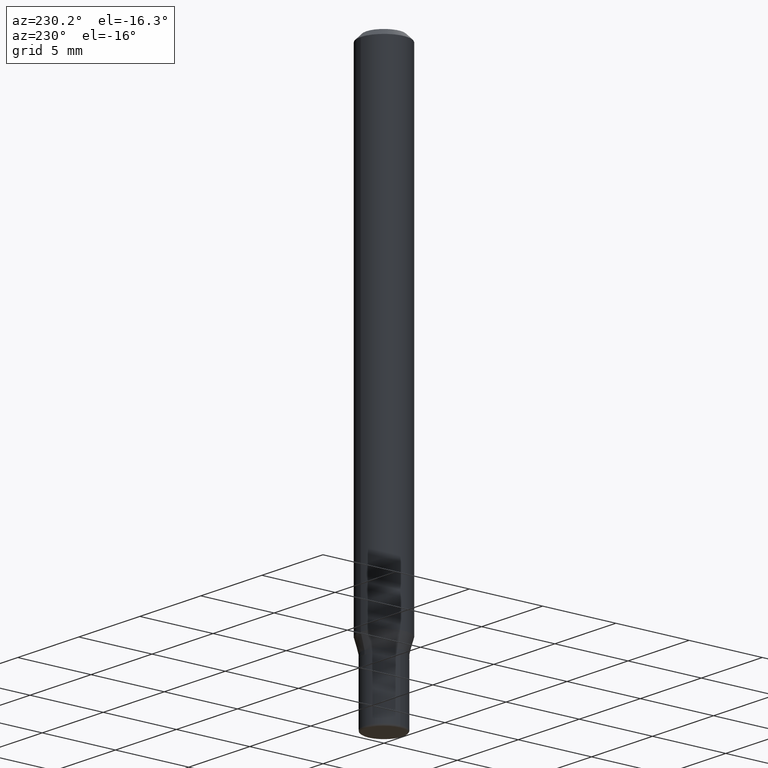
[diagram: clean part render]
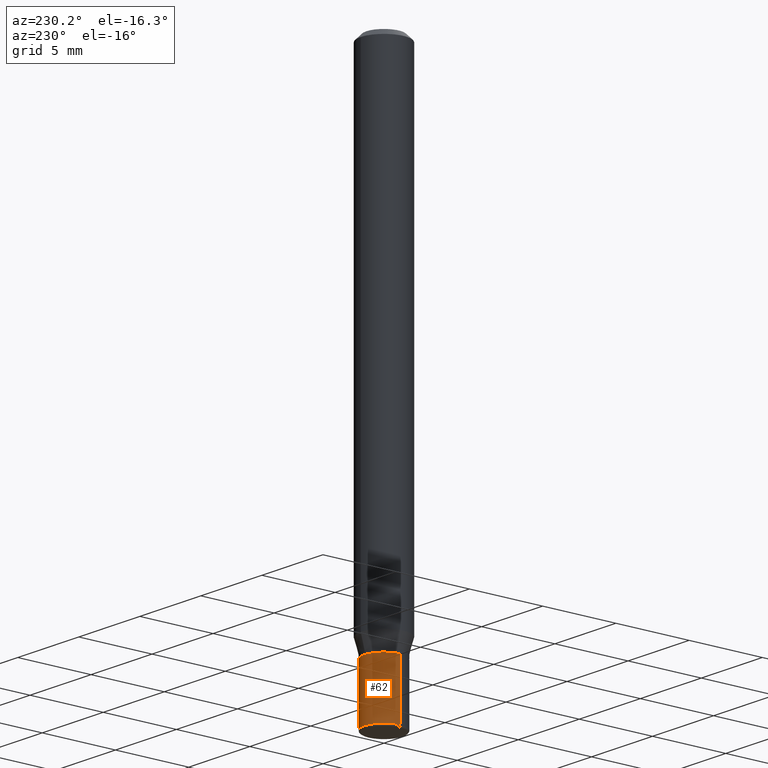
[diagram: same view with one face highlighted and labeled with its STEP entity id]
A machine part, auxiliary view. The second image highlights one B-rep face of the part: STEP entity #62.
In plain terms, the highlighted cylindrical surface (edge-blend (fillet) strip) has radius 1.3335 mm, axis along (-0, 0, 1).
Its self-contained STEP definition (entity closure, byte-faithful):
#12 = CIRCLE ( 'NONE', #185, 0.05250000000000017153 ) ;
#21 = EDGE_CURVE ( 'NONE', #258, #368, #114, .T. ) ;
#23 = CARTESIAN_POINT ( 'NONE',  ( -0.05249999999999999806, -4.579631342874949516E-15, -1.342000000000000082 ) ) ;
#24 = VERTEX_POINT ( 'NONE', #36 ) ;
#33 = DIRECTION ( 'NONE',  ( -2.445468806185136597E-29, 3.491481338843145583E-15, 1.000000000000000000 ) ) ;
#36 = CARTESIAN_POINT ( 'NONE',  ( 0.05250000000000017153, -5.586370142149033090E-15, -1.495000000000000107 ) ) ;
#62 = ADVANCED_FACE ( 'NONE', ( #352 ), #265, .T. ) ;
#73 = DIRECTION ( 'NONE',  ( -2.445468806185136597E-29, 3.491481338843145583E-15, 1.000000000000000000 ) ) ;
#80 = CARTESIAN_POINT ( 'NONE',  ( -0.05250000000000017153, -4.579631342874947939E-15, -1.495000000000000107 ) ) ;
#114 = CIRCLE ( 'NONE', #206, 0.05249999999999999806 ) ;
#116 = DIRECTION ( 'NONE',  ( 1.000000000000000000, -6.982962677686263555E-15, 0.000000000000000000 ) ) ;
#123 = ORIENTED_EDGE ( 'NONE', *, *, #456, .F. ) ;
#131 = DIRECTION ( 'NONE',  ( 1.000000000000000000, -6.982962677686268288E-15, 0.000000000000000000 ) ) ;
#147 = EDGE_CURVE ( 'NONE', #24, #454, #12, .T. ) ;
#152 = DIRECTION ( 'NONE',  ( -2.445468806185136877E-29, 3.491481338843145188E-15, 1.000000000000000000 ) ) ;
#158 = CARTESIAN_POINT ( 'NONE',  ( 0.000000000000000000, 0.000000000000000000, 0.000000000000000000 ) ) ;
#169 = CARTESIAN_POINT ( 'NONE',  ( 3.281819137900453057E-29, -4.685567956727500961E-15, -1.342000000000000082 ) ) ;
#170 = DIRECTION ( 'NONE',  ( -2.445468806185136877E-29, 3.491481338843145188E-15, 1.000000000000000000 ) ) ;
#174 = EDGE_LOOP ( 'NONE', ( #475, #443, #500, #123 ) ) ;
#178 = LINE ( 'NONE', #259, #236 ) ;
#185 = AXIS2_PLACEMENT_3D ( 'NONE', #481, #73, #116 ) ;
#206 = AXIS2_PLACEMENT_3D ( 'NONE', #169, #501, #131 ) ;
#236 = VECTOR ( 'NONE', #170, 39.37007874015748143 ) ;
#237 = CARTESIAN_POINT ( 'NONE',  ( 0.05250000000000008826, -3.666055405785296038E-16, 2.559992807292870916E-30 ) ) ;
#258 = VERTEX_POINT ( 'NONE', #471 ) ;
#259 = CARTESIAN_POINT ( 'NONE',  ( -0.05250000000000008826, 3.730349362740532247E-16, -2.582440922383829865E-30 ) ) ;
#265 = CYLINDRICAL_SURFACE ( 'NONE', #495, 0.05250000000000008826 ) ;
#298 = VECTOR ( 'NONE', #152, 39.37007874015748143 ) ;
#309 = LINE ( 'NONE', #237, #298 ) ;
#348 = DIRECTION ( 'NONE',  ( 1.000000000000000000, -6.982962677686266711E-15, 4.876176775795936353E-29 ) ) ;
#352 = FACE_OUTER_BOUND ( 'NONE', #174, .T. ) ;
#368 = VERTEX_POINT ( 'NONE', #23 ) ;
#374 = EDGE_CURVE ( 'NONE', #454, #368, #178, .T. ) ;
#443 = ORIENTED_EDGE ( 'NONE', *, *, #374, .T. ) ;
#454 = VERTEX_POINT ( 'NONE', #80 ) ;
#456 = EDGE_CURVE ( 'NONE', #24, #258, #309, .T. ) ;
#471 = CARTESIAN_POINT ( 'NONE',  ( 0.05249999999999999806, -5.052173497306030121E-15, -1.342000000000000082 ) ) ;
#475 = ORIENTED_EDGE ( 'NONE', *, *, #147, .T. ) ;
#481 = CARTESIAN_POINT ( 'NONE',  ( 3.655975865246779122E-29, -5.219764601570503141E-15, -1.495000000000000107 ) ) ;
#495 = AXIS2_PLACEMENT_3D ( 'NONE', #158, #33, #348 ) ;
#500 = ORIENTED_EDGE ( 'NONE', *, *, #21, .F. ) ;
#501 = DIRECTION ( 'NONE',  ( -2.445468806185136597E-29, 3.491481338843145583E-15, 1.000000000000000000 ) ) ;